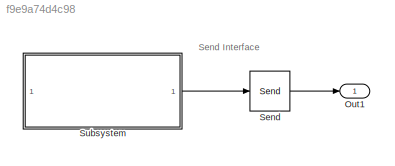
MODEL slx_f9e9a74d4c98
KIND model
CONFIG AbsTol = auto
CONFIG EnableMultiTasking = off
CONFIG FixedStep = 0.1
CONFIG MaxStep = auto
CONFIG MinStep = auto
CONFIG RelTol = 1e-3
CONFIG SampleTimeConstraint = Unconstrained
CONFIG SolverName = FixedStepAuto
CONFIG StartTime = 0.0
CONFIG StopTime = 10.0
BLOCK [Outport] Out1
  VectorParamsAs1DForOutWhenUnconnected = off
BLOCK [Send] Send
  InputPortMap = u1
  OutputPortMessageModes = m
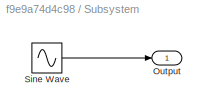
BLOCK [SubSystem] Subsystem 
BLOCK [Outport] Subsystem /Output
BLOCK [Sin] Subsystem /Sine Wave
  SampleTime = 0.1
ANNOTATION (root): Send Interface
LINE Send:1 -> Out1:1
LINE Subsystem /Sine Wave:1 -> Subsystem /Output:1
LINE Subsystem :1 -> Send:1
